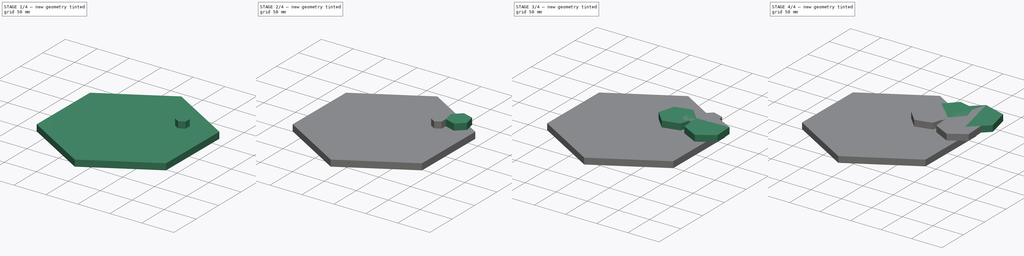
[diagram: build sequence overview — one tinted view per stage of 4, left to right]
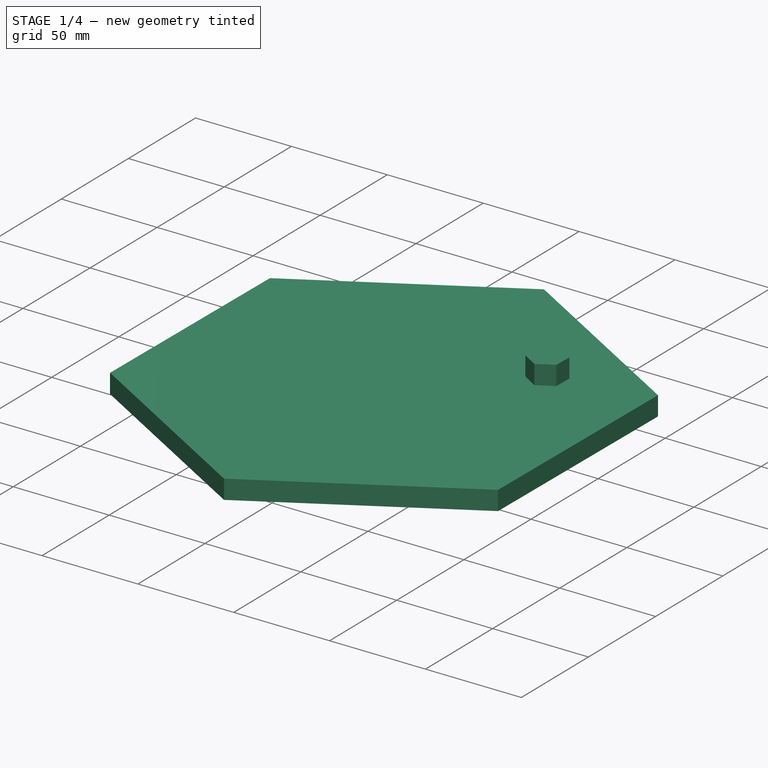
[diagram: stage 1 of 4 — iso view after this stage's code; geometry added in this stage tinted green]
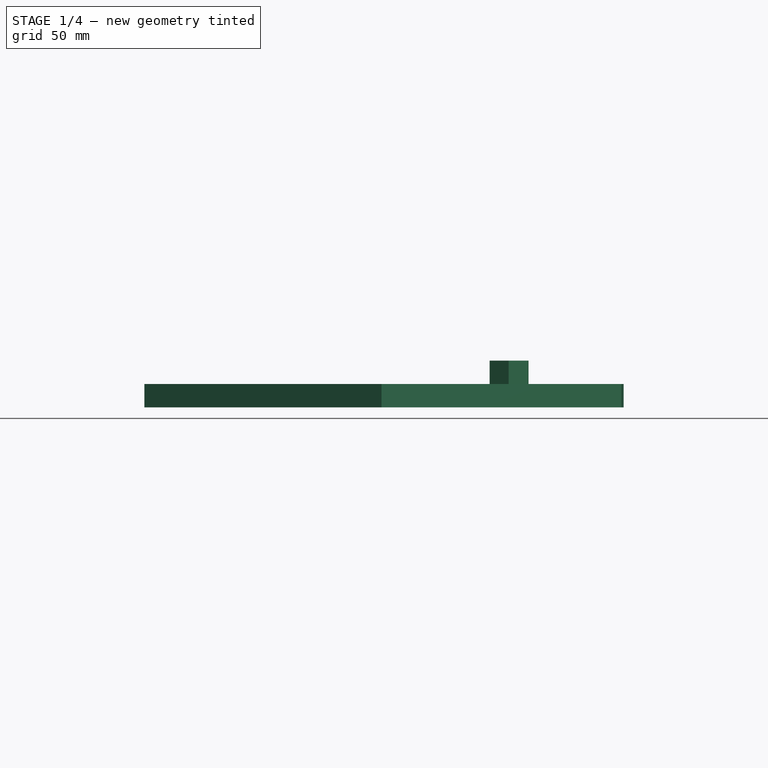
[diagram: stage 1 of 4 — front view after this stage's code; geometry added in this stage tinted green]
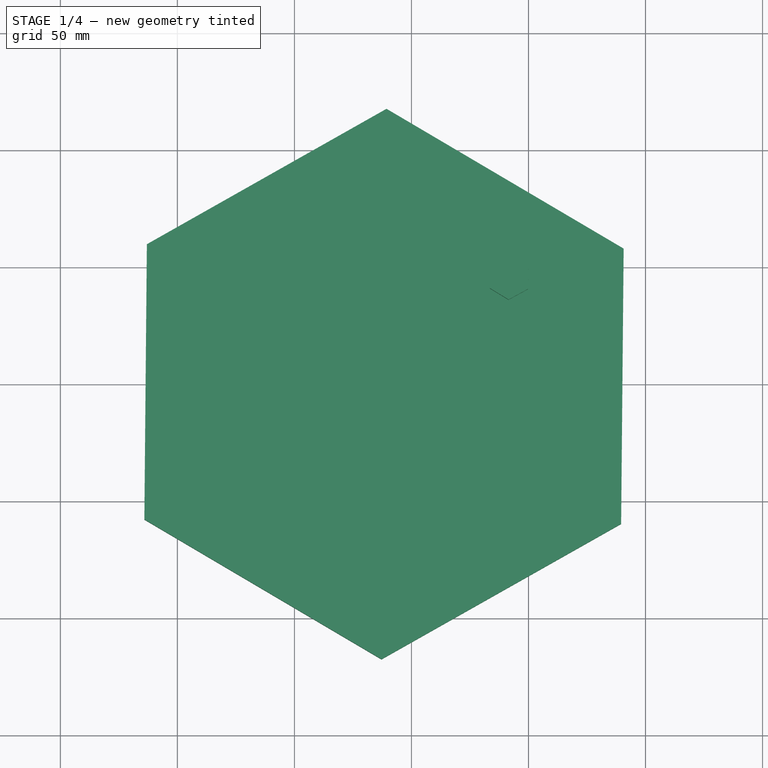
[diagram: stage 1 of 4 — top view after this stage's code; geometry added in this stage tinted green]
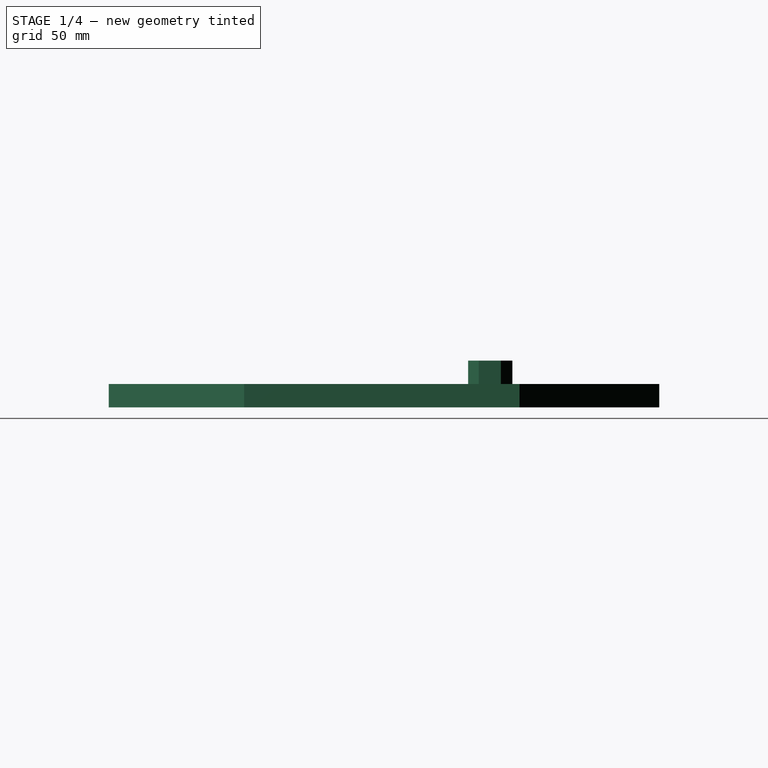
[diagram: stage 1 of 4 — right view after this stage's code; geometry added in this stage tinted green]
FCSTD DOCUMENT  (FreeCAD 0.19R)
Label: Model 04
License: All rights reserved
LicenseURL: http://en.wikipedia.org/wiki/All_rights_reserved
objects: Sketcher::SketchObject×12, PartDesign::Pad×12, PartDesign::Body×12
note: 48 computed .brp shape members not serialized (recipe doc carries the construction recipe); baked Part::Feature solids carry a one-line shape summary decoded from their .brp

FEATURE [PartDesign::Body] Body008
  Group = -> [Sketch008,Pad008]
  Origin = -> Origin008
  Placement = pos=(0,-4.9158,0) rot=(0,0,1;0rad)
  Tip = -> Pad008
FEATURE [Sketcher::SketchObject] Sketch009
  FullyConstrained = false
  MapMode = 5
  Support = -> [XY_Plane009]
  sketch-geometry (7):
    g0: LineSegment StartX=0 StartY=0 StartZ=0 EndX=-8.07043 EndY=4.9158 EndZ=0
    g1: LineSegment StartX=-8.07043 StartY=4.9158 StartZ=0 EndX=-16.3629 EndY=0.38451 EndZ=0
    g2: LineSegment StartX=-16.3629 StartY=0.38451 StartZ=0 EndX=-16.5848 EndY=-9.06259 EndZ=0
    g3: LineSegment StartX=-16.5848 StartY=-9.06259 StartZ=0 EndX=-8.51442 EndY=-13.9784 EndZ=0
    g4: LineSegment StartX=-8.51442 StartY=-13.9784 StartZ=0 EndX=-0.221997 EndY=-9.4471 EndZ=0
    g5: LineSegment StartX=-0.221997 StartY=-9.4471 StartZ=0 EndX=0 EndY=0 EndZ=0
    g6: Circle CenterX=-8.29242 CenterY=-4.53129 CenterZ=0 NormalX=0 NormalY=0 NormalZ=1 AngleXU=0 Radius=9.44971
  constraints (14):
    c: Coincident(g0,g1)
    c: Coincident(g1,g2)
    c: Coincident(g2,g3)
    c: Coincident(g3,g4)
    c: Coincident(g4,g5)
    c: Coincident(g5,g0)
    c: Equal(g0, g1-g5) x5
    c: PointOnObject(g0,g6)
    c: PointOnObject(g1,g6)
    c: PointOnObject(g2,g6)
    c: PointOnObject(g3,g6)
    c: PointOnObject(g4,g6)
    c: PointOnObject(g5,g6)
    c: Coincident(g5,g-1)
FEATURE [PartDesign::Pad] Pad009
  Direction = (1,1,1)
  Length = 10
  Length2 = 100
  Profile = -> Sketch009
  Type = 0
FEATURE [PartDesign::Body] Body009
  Group = -> [Sketch009,Pad009]
  Origin = -> Origin009
  Placement = pos=(0,-4.9158,0) rot=(0,0,1;0rad)
  Tip = -> Pad009
FEATURE [Sketcher::SketchObject] Sketch010
  FullyConstrained = false
  MapMode = 5
  Support = -> [XY_Plane010]
  sketch-geometry (7):
    g0: LineSegment StartX=0 StartY=0 StartZ=0 EndX=-8.07043 EndY=4.9158 EndZ=0
    g1: LineSegment StartX=-8.07043 StartY=4.9158 StartZ=0 EndX=-16.3629 EndY=0.38451 EndZ=0
    g2: LineSegment StartX=-16.3629 StartY=0.38451 StartZ=0 EndX=-16.5848 EndY=-9.06259 EndZ=0
    g3: LineSegment StartX=-16.5848 StartY=-9.06259 StartZ=0 EndX=-8.51442 EndY=-13.9784 EndZ=0
    g4: LineSegment StartX=-8.51442 StartY=-13.9784 StartZ=0 EndX=-0.221997 EndY=-9.4471 EndZ=0
    g5: LineSegment StartX=-0.221997 StartY=-9.4471 StartZ=0 EndX=0 EndY=0 EndZ=0
    g6: Circle CenterX=-8.29242 CenterY=-4.53129 CenterZ=0 NormalX=0 NormalY=0 NormalZ=1 AngleXU=0 Radius=9.44971
  constraints (14):
    c: Coincident(g0,g1)
    c: Coincident(g1,g2)
    c: Coincident(g2,g3)
    c: Coincident(g3,g4)
    c: Coincident(g4,g5)
    c: Coincident(g5,g0)
    c: Equal(g0, g1-g5) x5
    c: PointOnObject(g0,g6)
    c: PointOnObject(g1,g6)
    c: PointOnObject(g2,g6)
    c: PointOnObject(g3,g6)
    c: PointOnObject(g4,g6)
    c: PointOnObject(g5,g6)
    c: Coincident(g5,g-1)
FEATURE [PartDesign::Pad] Pad010
  Direction = (1,1,1)
  Length = 10
  Length2 = 100
  Profile = -> Sketch010
  Type = 0
FEATURE [PartDesign::Body] Body010
  Group = -> [Sketch010,Pad010]
  Origin = -> Origin010
  Placement = pos=(0,-4.9158,0) rot=(0,0,1;0rad)
  Tip = -> Pad010
FEATURE [Sketcher::SketchObject] Sketch013  label="Board"
  FullyConstrained = false
  MapMode = 5
  Support = -> [XY_Plane013]
  sketch-geometry (7):
    g0: LineSegment StartX=40.648 StartY=7.96072 StartZ=0 EndX=-60.6547 EndY=67.6901 EndZ=0
    g1: LineSegment StartX=-60.6547 StartY=67.6901 StartZ=0 EndX=-163.033 EndY=9.82395 EndZ=0
    g2: LineSegment StartX=-163.033 StartY=9.82395 StartZ=0 EndX=-164.109 EndY=-107.771 EndZ=0
    g3: LineSegment StartX=-164.109 StartY=-107.771 StartZ=0 EndX=-62.8062 EndY=-167.501 EndZ=0
    g4: LineSegment StartX=-62.8062 StartY=-167.501 StartZ=0 EndX=39.5723 EndY=-109.635 EndZ=0
    g5: LineSegment StartX=39.5723 StartY=-109.635 StartZ=0 EndX=40.648 EndY=7.96072 EndZ=0
    g6: Circle CenterX=-61.7305 CenterY=-49.9054 CenterZ=0 NormalX=0 NormalY=0 NormalZ=1 AngleXU=0 Radius=117.6
  constraints (13):
    c: Coincident(g0,g1)
    c: Coincident(g1,g2)
    c: Coincident(g2,g3)
    c: Coincident(g3,g4)
    c: Coincident(g4,g5)
    c: Coincident(g5,g0)
    c: Equal(g0, g1-g5) x5
    c: PointOnObject(g0,g6)
    c: PointOnObject(g1,g6)
    c: PointOnObject(g2,g6)
    c: PointOnObject(g3,g6)
    c: PointOnObject(g4,g6)
    c: PointOnObject(g5,g6)
FEATURE [PartDesign::Pad] Pad013
  Direction = (1,1,1)
  Length = 10
  Length2 = 100
  Profile = -> Sketch013
  Reversed = true
  Type = 0
FEATURE [PartDesign::Body] Body013  label="Board Body"
  Group = -> [Sketch013,Pad013]
  Origin = -> Origin013
  Placement = pos=(164.109,167.501,0) rot=(0,0,1;0rad)
  Tip = -> Pad013
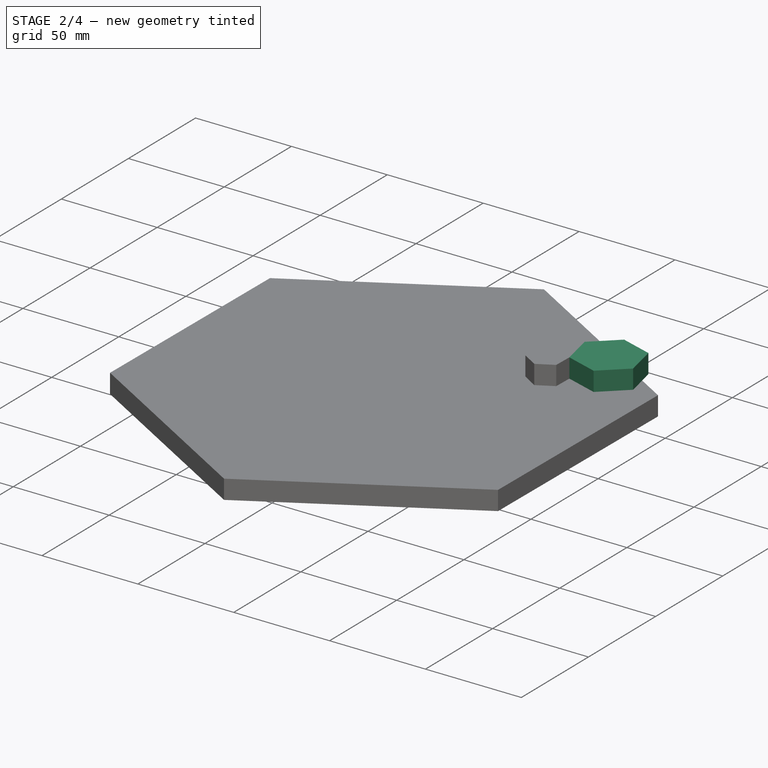
[diagram: stage 2 of 4 — iso view after this stage's code; geometry added in this stage tinted green]
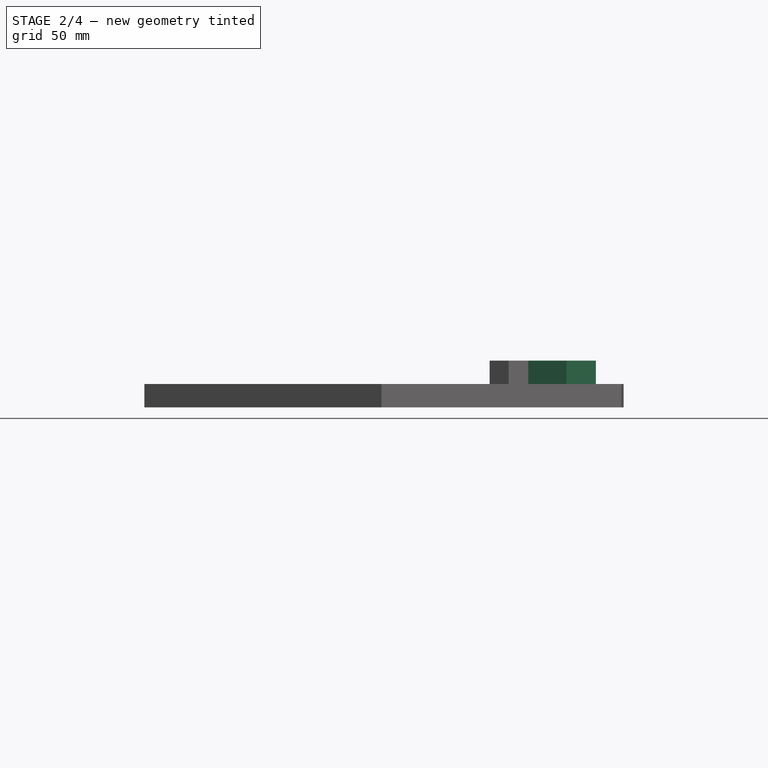
[diagram: stage 2 of 4 — front view after this stage's code; geometry added in this stage tinted green]
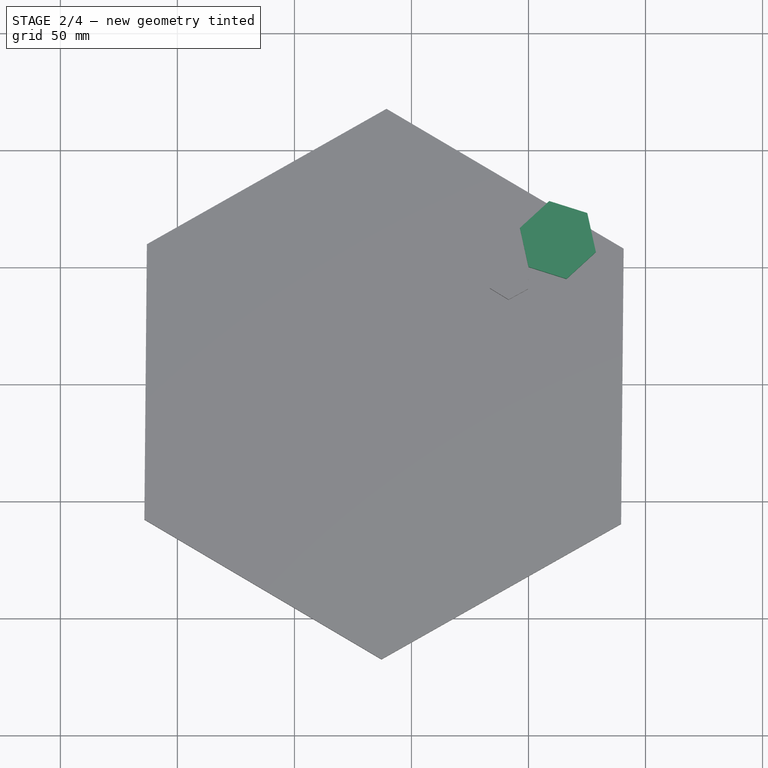
[diagram: stage 2 of 4 — top view after this stage's code; geometry added in this stage tinted green]
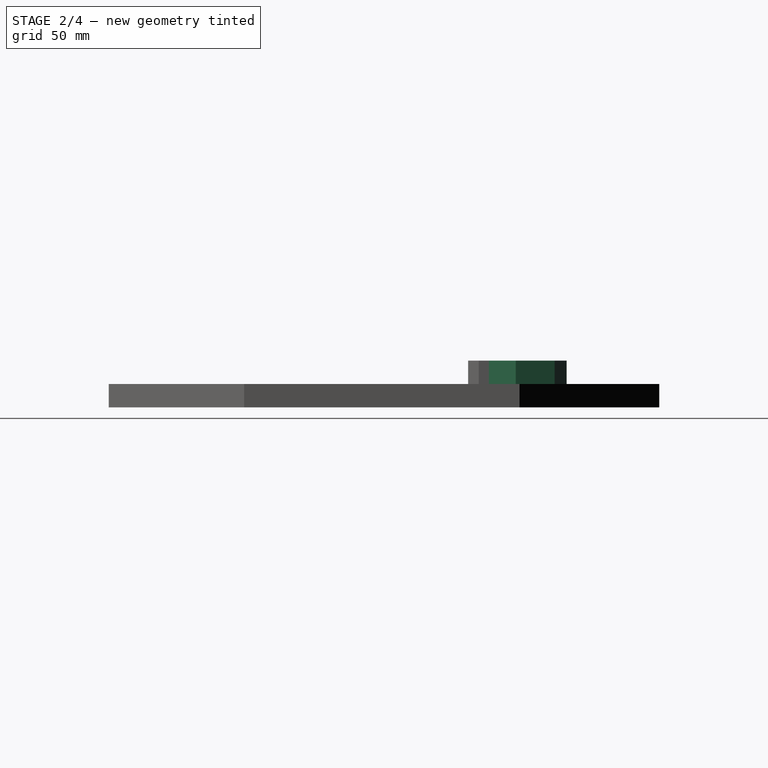
[diagram: stage 2 of 4 — right view after this stage's code; geometry added in this stage tinted green]
FEATURE [PartDesign::Body] Body005
  Group = -> [Sketch005,Pad005]
  Origin = -> Origin005
  Placement = pos=(0,-19.1803,0) rot=(0,0,1;0rad)
  Tip = -> Pad005
FEATURE [Sketcher::SketchObject] Sketch006
  FullyConstrained = false
  MapMode = 5
  Support = -> [XY_Plane006]
  sketch-geometry (7):
    g0: LineSegment StartX=0 StartY=0 StartZ=0 EndX=16.229 EndY=-5.12764 EndZ=0
    g1: LineSegment StartX=16.229 StartY=-5.12764 StartZ=0 EndX=28.7842 EndY=6.36329 EndZ=0
    g2: LineSegment StartX=28.7842 StartY=6.36329 StartZ=0 EndX=25.1104 EndY=22.9819 EndZ=0
    g3: LineSegment StartX=25.1104 StartY=22.9819 StartZ=0 EndX=8.88133 EndY=28.1095 EndZ=0
    g4: LineSegment StartX=8.88133 StartY=28.1095 StartZ=0 EndX=-3.67385 EndY=16.6186 EndZ=0
    g5: LineSegment StartX=-3.67385 StartY=16.6186 StartZ=0 EndX=0 EndY=0 EndZ=0
    g6: Circle CenterX=12.5552 CenterY=11.4909 CenterZ=0 NormalX=0 NormalY=0 NormalZ=1 AngleXU=0 Radius=17.0198
  constraints (14):
    c: Coincident(g0,g1)
    c: Coincident(g1,g2)
    c: Coincident(g2,g3)
    c: Coincident(g3,g4)
    c: Coincident(g4,g5)
    c: Coincident(g5,g0)
    c: Equal(g0, g1-g5) x5
    c: PointOnObject(g0,g6)
    c: PointOnObject(g1,g6)
    c: PointOnObject(g2,g6)
    c: PointOnObject(g3,g6)
    c: PointOnObject(g4,g6)
    c: PointOnObject(g5,g6)
    c: Coincident(g5,g-1)
FEATURE [PartDesign::Pad] Pad006
  Direction = (1,1,1)
  Length = 10
  Length2 = 100
  Profile = -> Sketch006
  Type = 0
FEATURE [PartDesign::Body] Body006
  Group = -> [Sketch006,Pad006]
  Origin = -> Origin006
  Placement = pos=(-28.7842,-28.1095,0) rot=(0,0,1;0rad)
  Tip = -> Pad006
FEATURE [Sketcher::SketchObject] Sketch007
  FullyConstrained = false
  MapMode = 5
  Support = -> [XY_Plane007]
  sketch-geometry (7):
    g0: LineSegment StartX=0 StartY=0 StartZ=0 EndX=16.229 EndY=-5.12764 EndZ=0
    g1: LineSegment StartX=16.229 StartY=-5.12764 StartZ=0 EndX=28.7842 EndY=6.36329 EndZ=0
    g2: LineSegment StartX=28.7842 StartY=6.36329 StartZ=0 EndX=25.1104 EndY=22.9819 EndZ=0
    g3: LineSegment StartX=25.1104 StartY=22.9819 StartZ=0 EndX=8.88133 EndY=28.1095 EndZ=0
    g4: LineSegment StartX=8.88133 StartY=28.1095 StartZ=0 EndX=-3.67385 EndY=16.6186 EndZ=0
    g5: LineSegment StartX=-3.67385 StartY=16.6186 StartZ=0 EndX=0 EndY=0 EndZ=0
    g6: Circle CenterX=12.5552 CenterY=11.4909 CenterZ=0 NormalX=0 NormalY=0 NormalZ=1 AngleXU=0 Radius=17.0198
  constraints (14):
    c: Coincident(g0,g1)
    c: Coincident(g1,g2)
    c: Coincident(g2,g3)
    c: Coincident(g3,g4)
    c: Coincident(g4,g5)
    c: Coincident(g5,g0)
    c: Equal(g0, g1-g5) x5
    c: PointOnObject(g0,g6)
    c: PointOnObject(g1,g6)
    c: PointOnObject(g2,g6)
    c: PointOnObject(g3,g6)
    c: PointOnObject(g4,g6)
    c: PointOnObject(g5,g6)
    c: Coincident(g5,g-1)
FEATURE [PartDesign::Pad] Pad007
  Direction = (1,1,1)
  Length = 10
  Length2 = 100
  Profile = -> Sketch007
  Type = 0
FEATURE [PartDesign::Body] Body007
  Group = -> [Sketch007,Pad007]
  Origin = -> Origin007
  Placement = pos=(-28.7842,-28.1095,0) rot=(0,0,1;0rad)
  Tip = -> Pad007
FEATURE [Sketcher::SketchObject] Sketch008
  FullyConstrained = false
  MapMode = 5
  Support = -> [XY_Plane008]
  sketch-geometry (7):
    g0: LineSegment StartX=0 StartY=0 StartZ=0 EndX=-8.07043 EndY=4.9158 EndZ=0
    g1: LineSegment StartX=-8.07043 StartY=4.9158 StartZ=0 EndX=-16.3629 EndY=0.38451 EndZ=0
    g2: LineSegment StartX=-16.3629 StartY=0.38451 StartZ=0 EndX=-16.5848 EndY=-9.06259 EndZ=0
    g3: LineSegment StartX=-16.5848 StartY=-9.06259 StartZ=0 EndX=-8.51442 EndY=-13.9784 EndZ=0
    g4: LineSegment StartX=-8.51442 StartY=-13.9784 StartZ=0 EndX=-0.221997 EndY=-9.4471 EndZ=0
    g5: LineSegment StartX=-0.221997 StartY=-9.4471 StartZ=0 EndX=0 EndY=0 EndZ=0
    g6: Circle CenterX=-8.29242 CenterY=-4.53129 CenterZ=0 NormalX=0 NormalY=0 NormalZ=1 AngleXU=0 Radius=9.44971
  constraints (14):
    c: Coincident(g0,g1)
    c: Coincident(g1,g2)
    c: Coincident(g2,g3)
    c: Coincident(g3,g4)
    c: Coincident(g4,g5)
    c: Coincident(g5,g0)
    c: Equal(g0, g1-g5) x5
    c: PointOnObject(g0,g6)
    c: PointOnObject(g1,g6)
    c: PointOnObject(g2,g6)
    c: PointOnObject(g3,g6)
    c: PointOnObject(g4,g6)
    c: PointOnObject(g5,g6)
    c: Coincident(g5,g-1)
FEATURE [PartDesign::Pad] Pad008
  Direction = (1,1,1)
  Length = 10
  Length2 = 100
  Profile = -> Sketch008
  Type = 0
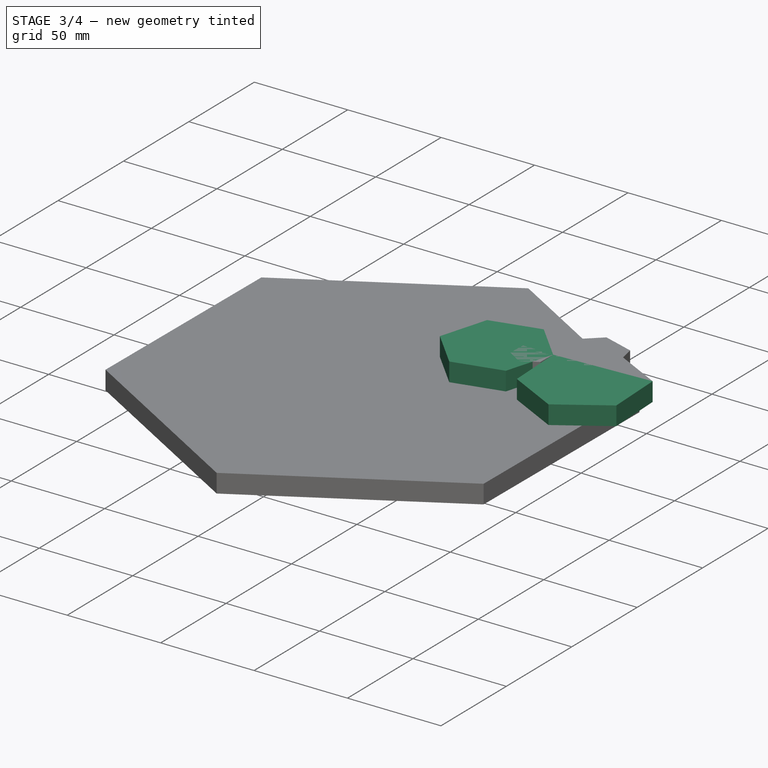
[diagram: stage 3 of 4 — iso view after this stage's code; geometry added in this stage tinted green]
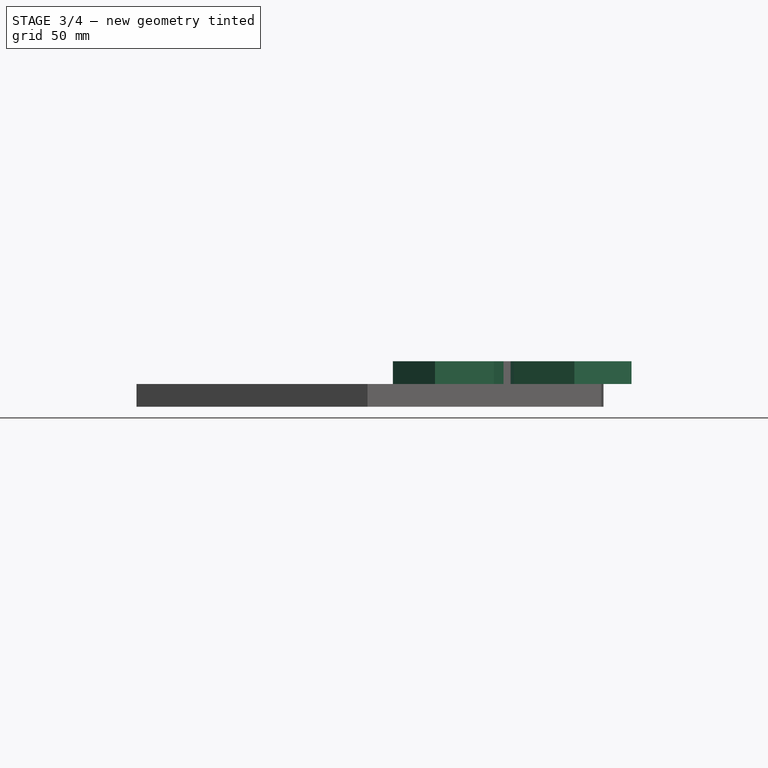
[diagram: stage 3 of 4 — front view after this stage's code; geometry added in this stage tinted green]
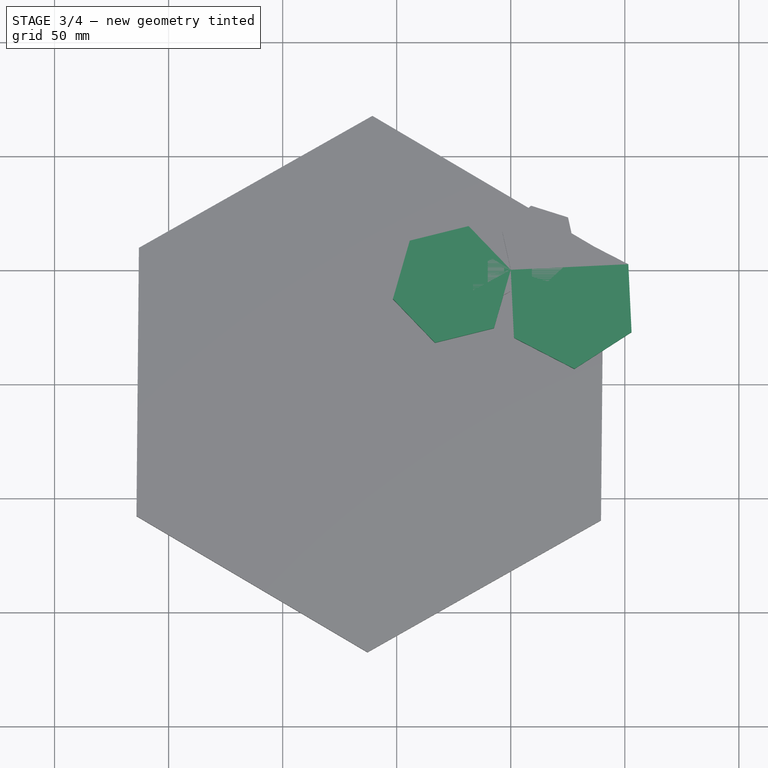
[diagram: stage 3 of 4 — top view after this stage's code; geometry added in this stage tinted green]
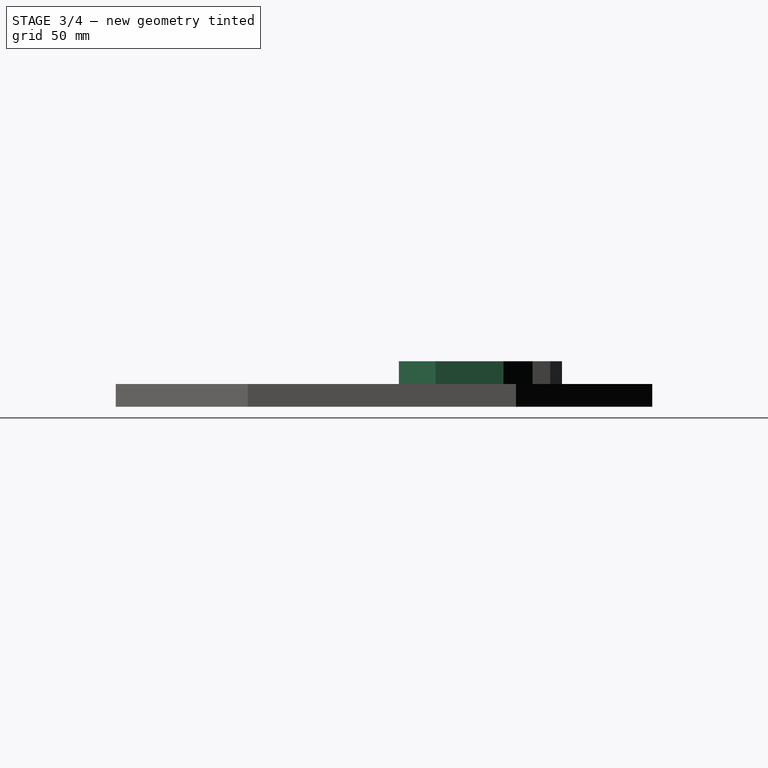
[diagram: stage 3 of 4 — right view after this stage's code; geometry added in this stage tinted green]
FEATURE [PartDesign::Body] Body002
  Group = -> [Sketch002,Pad002]
  Origin = -> Origin002
  Placement = pos=(-18.0583,-50.3127,0) rot=(0,0,1;0rad)
  Tip = -> Pad002
FEATURE [Sketcher::SketchObject] Sketch003
  FullyConstrained = false
  MapMode = 5
  Support = -> [XY_Plane003]
  sketch-geometry (7):
    g0: LineSegment StartX=0 StartY=0 StartZ=0 EndX=-8.07043 EndY=4.9158 EndZ=0
    g1: LineSegment StartX=-8.07043 StartY=4.9158 StartZ=0 EndX=-16.3629 EndY=0.38451 EndZ=0
    g2: LineSegment StartX=-16.3629 StartY=0.38451 StartZ=0 EndX=-16.5848 EndY=-9.06259 EndZ=0
    g3: LineSegment StartX=-16.5848 StartY=-9.06259 StartZ=0 EndX=-8.51442 EndY=-13.9784 EndZ=0
    g4: LineSegment StartX=-8.51442 StartY=-13.9784 StartZ=0 EndX=-0.221997 EndY=-9.4471 EndZ=0
    g5: LineSegment StartX=-0.221997 StartY=-9.4471 StartZ=0 EndX=0 EndY=0 EndZ=0
    g6: Circle CenterX=-8.29242 CenterY=-4.53129 CenterZ=0 NormalX=0 NormalY=0 NormalZ=1 AngleXU=0 Radius=9.44971
  constraints (14):
    c: Coincident(g0,g1)
    c: Coincident(g1,g2)
    c: Coincident(g2,g3)
    c: Coincident(g3,g4)
    c: Coincident(g4,g5)
    c: Coincident(g5,g0)
    c: Equal(g0, g1-g5) x5
    c: PointOnObject(g0,g6)
    c: PointOnObject(g1,g6)
    c: PointOnObject(g2,g6)
    c: PointOnObject(g3,g6)
    c: PointOnObject(g4,g6)
    c: PointOnObject(g5,g6)
    c: Coincident(g5,g-1)
FEATURE [PartDesign::Pad] Pad003
  Direction = (1,1,1)
  Length = 10
  Length2 = 100
  Profile = -> Sketch003
  Type = 0
FEATURE [PartDesign::Body] Body003
  Group = -> [Sketch003,Pad003]
  Origin = -> Origin003
  Placement = pos=(0,-4.9158,0) rot=(0,0,1;0rad)
  Tip = -> Pad003
FEATURE [Sketcher::SketchObject] Sketch004
  FullyConstrained = false
  MapMode = 5
  Support = -> [XY_Plane004]
  sketch-geometry (7):
    g0: LineSegment StartX=0 StartY=0 StartZ=0 EndX=1.42162 EndY=-29.7586 EndZ=0
    g1: LineSegment StartX=1.42162 StartY=-29.7586 StartZ=0 EndX=27.9041 EndY=-43.4067 EndZ=0
    g2: LineSegment StartX=27.9041 StartY=-43.4067 StartZ=0 EndX=52.965 EndY=-27.2963 EndZ=0
    g3: LineSegment StartX=52.965 StartY=-27.2963 StartZ=0 EndX=51.5434 EndY=2.46231 EndZ=0
    g4: LineSegment StartX=51.5434 StartY=2.46231 StartZ=0 EndX=25.0609 EndY=16.1104 EndZ=0
    g5: LineSegment StartX=25.0609 StartY=16.1104 StartZ=0 EndX=0 EndY=0 EndZ=0
    g6: Circle CenterX=26.4825 CenterY=-13.6481 CenterZ=0 NormalX=0 NormalY=0 NormalZ=1 AngleXU=0 Radius=29.7925
  constraints (14):
    c: Coincident(g0,g1)
    c: Coincident(g1,g2)
    c: Coincident(g2,g3)
    c: Coincident(g3,g4)
    c: Coincident(g4,g5)
    c: Coincident(g5,g0)
    c: Equal(g0, g1-g5) x5
    c: PointOnObject(g0,g6)
    c: PointOnObject(g1,g6)
    c: PointOnObject(g2,g6)
    c: PointOnObject(g3,g6)
    c: PointOnObject(g4,g6)
    c: PointOnObject(g5,g6)
    c: Coincident(g5,g-1)
FEATURE [PartDesign::Pad] Pad004
  Direction = (1,1,1)
  Length = 10
  Length2 = 100
  Profile = -> Sketch004
  Type = 0
FEATURE [PartDesign::Body] Body004
  Group = -> [Sketch004,Pad004]
  Origin = -> Origin004
  Placement = pos=(-52.965,-16.1104,0) rot=(0,0,1;0rad)
  Tip = -> Pad004
FEATURE [Sketcher::SketchObject] Sketch005
  FullyConstrained = false
  MapMode = 5
  Support = -> [XY_Plane005]
  sketch-geometry (7):
    g0: LineSegment StartX=0 StartY=0 StartZ=0 EndX=-18.448 EndY=19.1803 EndZ=0
    g1: LineSegment StartX=-18.448 StartY=19.1803 StartZ=0 EndX=-44.2827 EndY=12.794 EndZ=0
    g2: LineSegment StartX=-44.2827 StartY=12.794 StartZ=0 EndX=-51.6693 EndY=-12.7726 EndZ=0
    g3: LineSegment StartX=-51.6693 StartY=-12.7726 StartZ=0 EndX=-33.2213 EndY=-31.9529 EndZ=0
    g4: LineSegment StartX=-33.2213 StartY=-31.9529 StartZ=0 EndX=-7.38664 EndY=-25.5666 EndZ=0
    g5: LineSegment StartX=-7.38664 StartY=-25.5666 StartZ=0 EndX=0 EndY=0 EndZ=0
    g6: Circle CenterX=-25.8346 CenterY=-6.38628 CenterZ=0 NormalX=0 NormalY=0 NormalZ=1 AngleXU=0 Radius=26.6123
  constraints (14):
    c: Coincident(g0,g1)
    c: Coincident(g1,g2)
    c: Coincident(g2,g3)
    c: Coincident(g3,g4)
    c: Coincident(g4,g5)
    c: Coincident(g5,g0)
    c: Equal(g0, g1-g5) x5
    c: PointOnObject(g0,g6)
    c: PointOnObject(g1,g6)
    c: PointOnObject(g2,g6)
    c: PointOnObject(g3,g6)
    c: PointOnObject(g4,g6)
    c: PointOnObject(g5,g6)
    c: Coincident(g5,g-1)
FEATURE [PartDesign::Pad] Pad005
  Direction = (1,1,1)
  Length = 10
  Length2 = 100
  Profile = -> Sketch005
  Type = 0
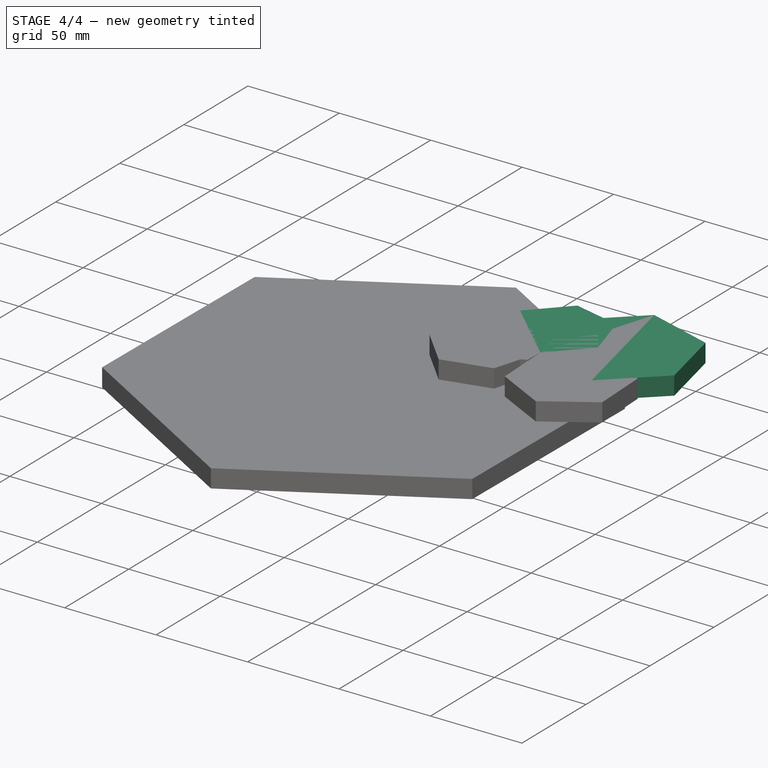
[diagram: stage 4 of 4 — iso view after this stage's code; geometry added in this stage tinted green]
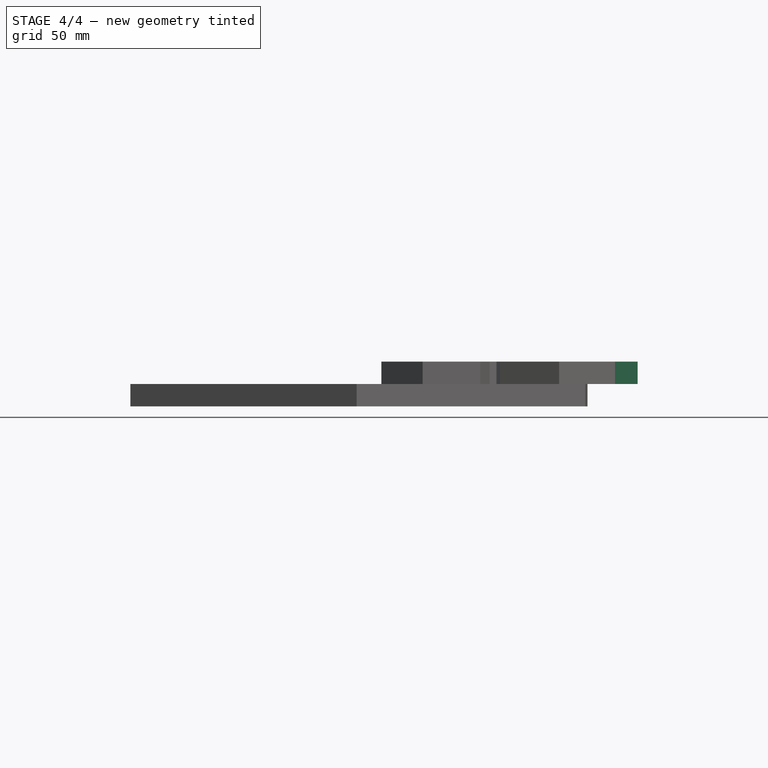
[diagram: stage 4 of 4 — front view after this stage's code; geometry added in this stage tinted green]
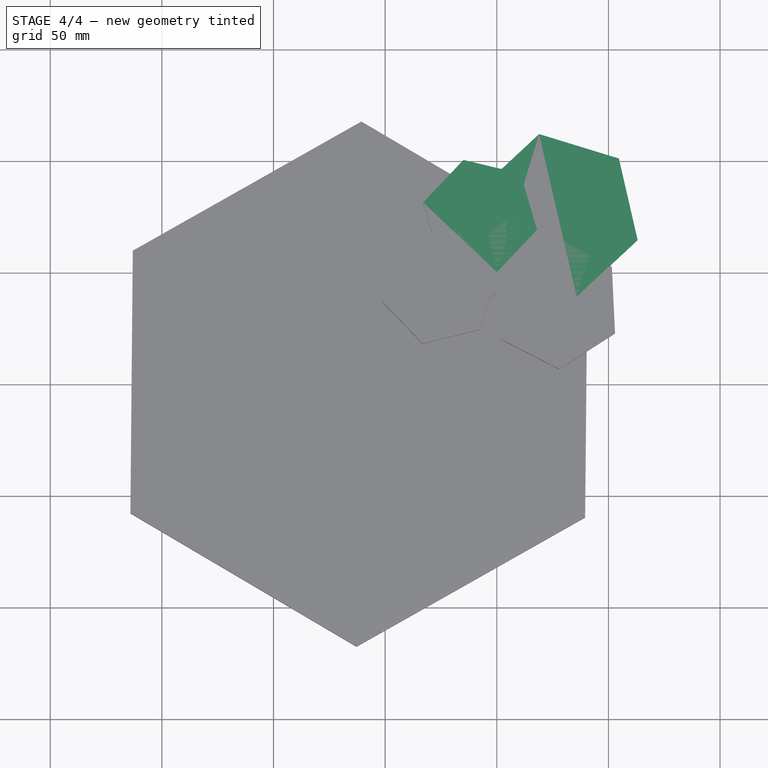
[diagram: stage 4 of 4 — top view after this stage's code; geometry added in this stage tinted green]
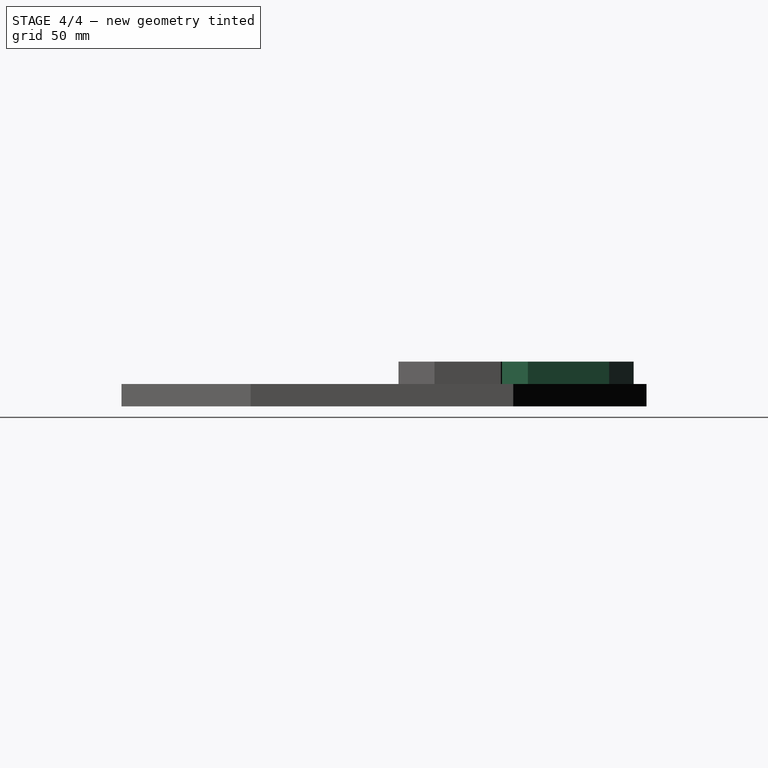
[diagram: stage 4 of 4 — right view after this stage's code; geometry added in this stage tinted green]
FEATURE [Sketcher::SketchObject] Sketch
  FullyConstrained = false
  MapMode = 5
  Support = -> [XY_Plane001]
  sketch-geometry (7):
    g0: LineSegment StartX=0 StartY=0 StartZ=0 EndX=35.7308 EndY=-10.9427 EndZ=0
    g1: LineSegment StartX=35.7308 StartY=-10.9427 StartZ=0 EndX=63.0728 EndY=14.5297 EndZ=0
    g2: LineSegment StartX=63.0728 StartY=14.5297 StartZ=0 EndX=54.6841 EndY=50.9448 EndZ=0
    g3: LineSegment StartX=54.6841 StartY=50.9448 StartZ=0 EndX=18.9534 EndY=61.8875 EndZ=0
    g4: LineSegment StartX=18.9534 StartY=61.8875 StartZ=0 EndX=-8.3887 EndY=36.4151 EndZ=0
    g5: LineSegment StartX=-8.3887 StartY=36.4151 StartZ=0 EndX=0 EndY=0 EndZ=0
    g6: Circle CenterX=27.3421 CenterY=25.4724 CenterZ=0 NormalX=0 NormalY=0 NormalZ=1 AngleXU=0 Radius=37.3688
  constraints (14):
    c: Coincident(g0,g1)
    c: Coincident(g1,g2)
    c: Coincident(g2,g3)
    c: Coincident(g3,g4)
    c: Coincident(g4,g5)
    c: Coincident(g5,g0)
    c: Equal(g0, g1-g5) x5
    c: PointOnObject(g0,g6)
    c: PointOnObject(g1,g6)
    c: PointOnObject(g2,g6)
    c: PointOnObject(g3,g6)
    c: PointOnObject(g4,g6)
    c: PointOnObject(g5,g6)
    c: Coincident(g5,g-1)
FEATURE [PartDesign::Pad] Pad
  Direction = (1,1,1)
  Length = 10
  Length2 = 100
  Profile = -> Sketch
  Type = 0
FEATURE [PartDesign::Body] Body001
  Group = -> [Sketch,Pad]
  Origin = -> Origin001
  Placement = pos=(-63.0728,-61.8875,0) rot=(0,0,1;0rad)
  Tip = -> Pad
FEATURE [Sketcher::SketchObject] Sketch001
  FullyConstrained = false
  MapMode = 5
  Support = -> [XY_Plane]
  sketch-geometry (7):
    g0: LineSegment StartX=0 StartY=0 StartZ=0 EndX=16.229 EndY=-5.12764 EndZ=0
    g1: LineSegment StartX=16.229 StartY=-5.12764 StartZ=0 EndX=28.7842 EndY=6.36329 EndZ=0
    g2: LineSegment StartX=28.7842 StartY=6.36329 StartZ=0 EndX=25.1104 EndY=22.9819 EndZ=0
    g3: LineSegment StartX=25.1104 StartY=22.9819 StartZ=0 EndX=8.88133 EndY=28.1095 EndZ=0
    g4: LineSegment StartX=8.88133 StartY=28.1095 StartZ=0 EndX=-3.67385 EndY=16.6186 EndZ=0
    g5: LineSegment StartX=-3.67385 StartY=16.6186 StartZ=0 EndX=0 EndY=0 EndZ=0
    g6: Circle CenterX=12.5552 CenterY=11.4909 CenterZ=0 NormalX=0 NormalY=0 NormalZ=1 AngleXU=0 Radius=17.0198
  constraints (14):
    c: Coincident(g0,g1)
    c: Coincident(g1,g2)
    c: Coincident(g2,g3)
    c: Coincident(g3,g4)
    c: Coincident(g4,g5)
    c: Coincident(g5,g0)
    c: Equal(g0, g1-g5) x5
    c: PointOnObject(g0,g6)
    c: PointOnObject(g1,g6)
    c: PointOnObject(g2,g6)
    c: PointOnObject(g3,g6)
    c: PointOnObject(g4,g6)
    c: PointOnObject(g5,g6)
    c: Coincident(g5,g-1)
FEATURE [PartDesign::Pad] Pad001
  Direction = (1,1,1)
  Length = 10
  Length2 = 100
  Profile = -> Sketch001
  Type = 0
FEATURE [PartDesign::Body] Body
  Group = -> [Sketch001,Pad001]
  Origin = -> Origin
  Placement = pos=(-28.7842,-28.1095,0) rot=(0,0,1;0rad)
  Tip = -> Pad001
FEATURE [Sketcher::SketchObject] Sketch002
  FullyConstrained = false
  MapMode = 5
  Support = -> [XY_Plane002]
  sketch-geometry (7):
    g0: LineSegment StartX=0 StartY=0 StartZ=0 EndX=18.0583 EndY=19.0349 EndZ=0
    g1: LineSegment StartX=18.0583 StartY=19.0349 StartZ=0 EndX=10.6028 EndY=44.1912 EndZ=0
    g2: LineSegment StartX=10.6028 StartY=44.1912 StartZ=0 EndX=-14.9111 EndY=50.3127 EndZ=0
    g3: LineSegment StartX=-14.9111 StartY=50.3127 StartZ=0 EndX=-32.9693 EndY=31.2779 EndZ=0
    g4: LineSegment StartX=-32.9693 StartY=31.2779 StartZ=0 EndX=-25.5138 EndY=6.12151 EndZ=0
    g5: LineSegment StartX=-25.5138 StartY=6.12151 StartZ=0 EndX=0 EndY=0 EndZ=0
    g6: Circle CenterX=-7.45553 CenterY=25.1564 CenterZ=0 NormalX=0 NormalY=0 NormalZ=1 AngleXU=0 Radius=26.2379
  constraints (14):
    c: Coincident(g0,g1)
    c: Coincident(g1,g2)
    c: Coincident(g2,g3)
    c: Coincident(g3,g4)
    c: Coincident(g4,g5)
    c: Coincident(g5,g0)
    c: Equal(g0, g1-g5) x5
    c: PointOnObject(g0,g6)
    c: PointOnObject(g1,g6)
    c: PointOnObject(g2,g6)
    c: PointOnObject(g3,g6)
    c: PointOnObject(g4,g6)
    c: PointOnObject(g5,g6)
    c: Coincident(g5,g-1)
FEATURE [PartDesign::Pad] Pad002
  Direction = (1,1,1)
  Length = 10
  Length2 = 100
  Profile = -> Sketch002
  Type = 0
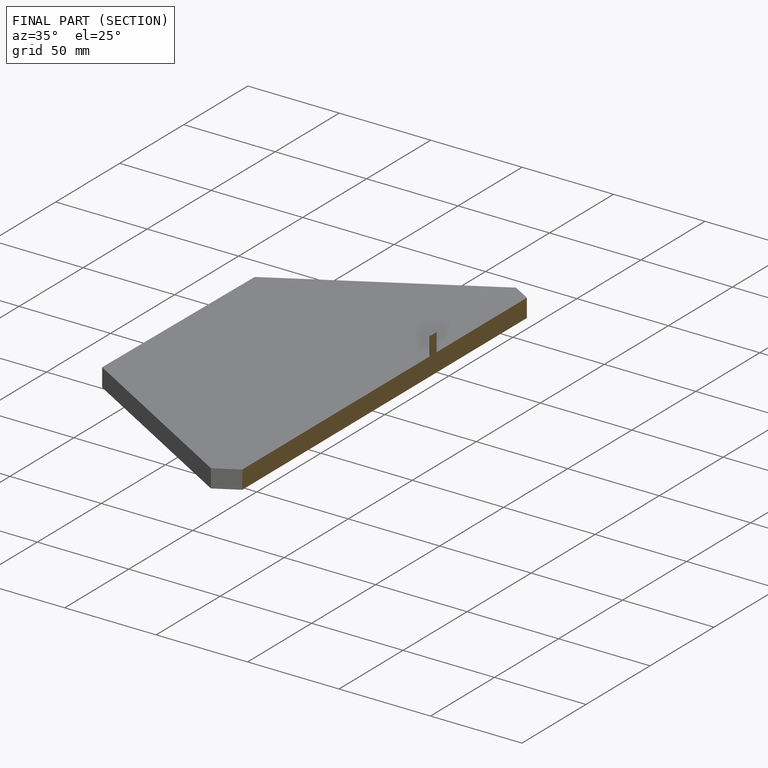
[diagram: finished part — half-section view (interior)]
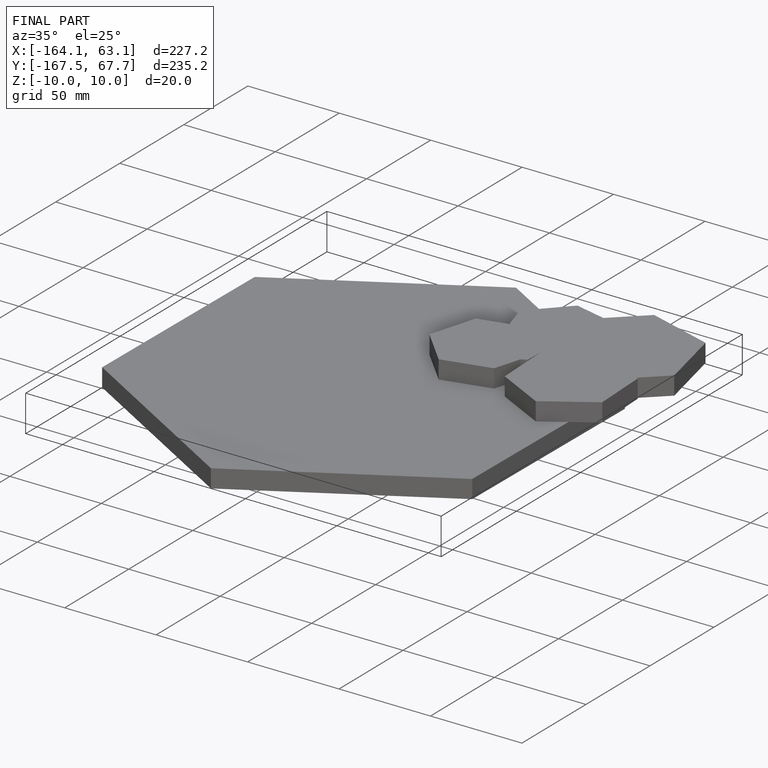
[diagram: finished part — iso view with bounding-box wireframe]
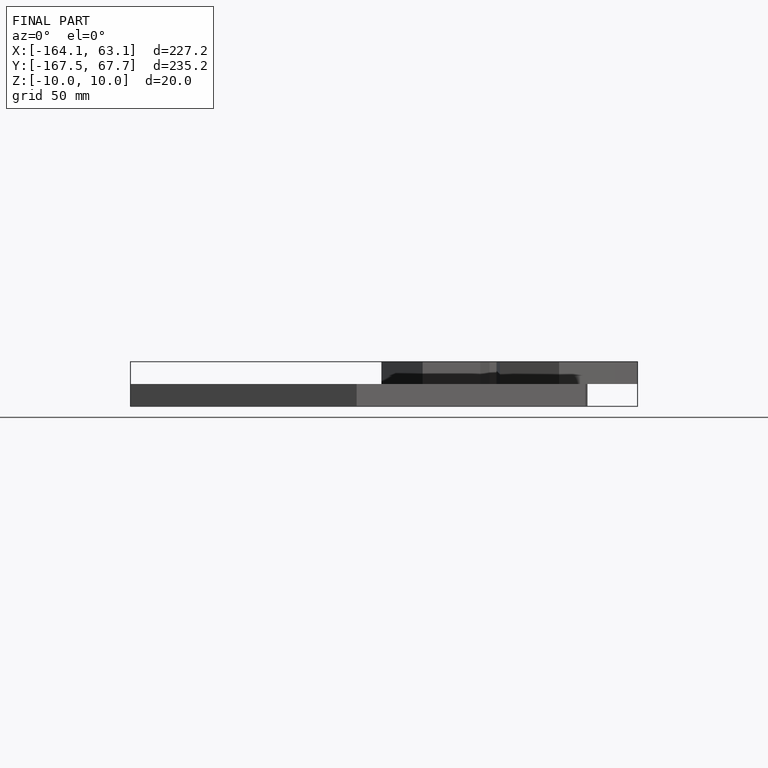
[diagram: finished part — front view with bounding-box wireframe]
